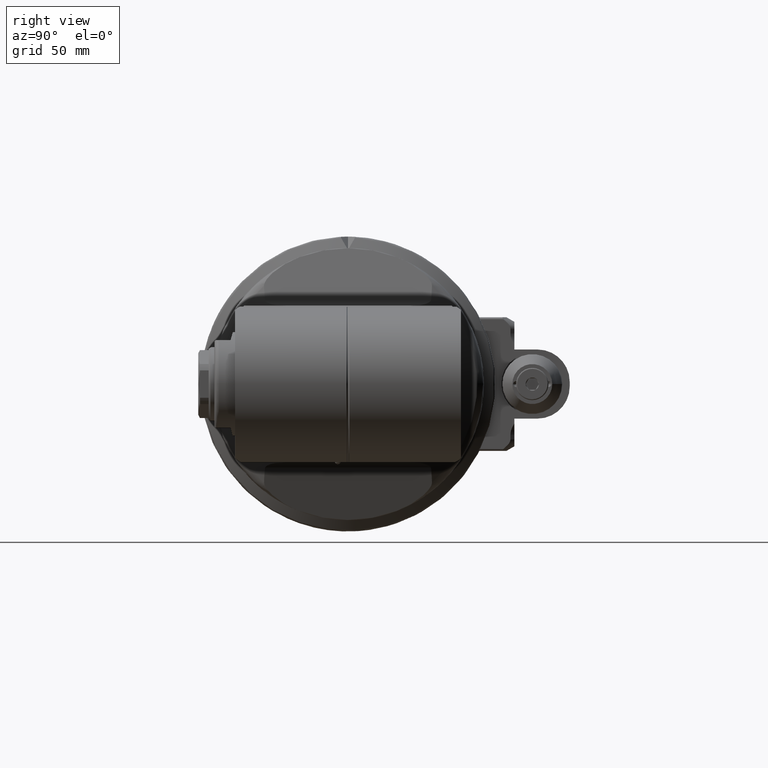
[diagram: clean part render]
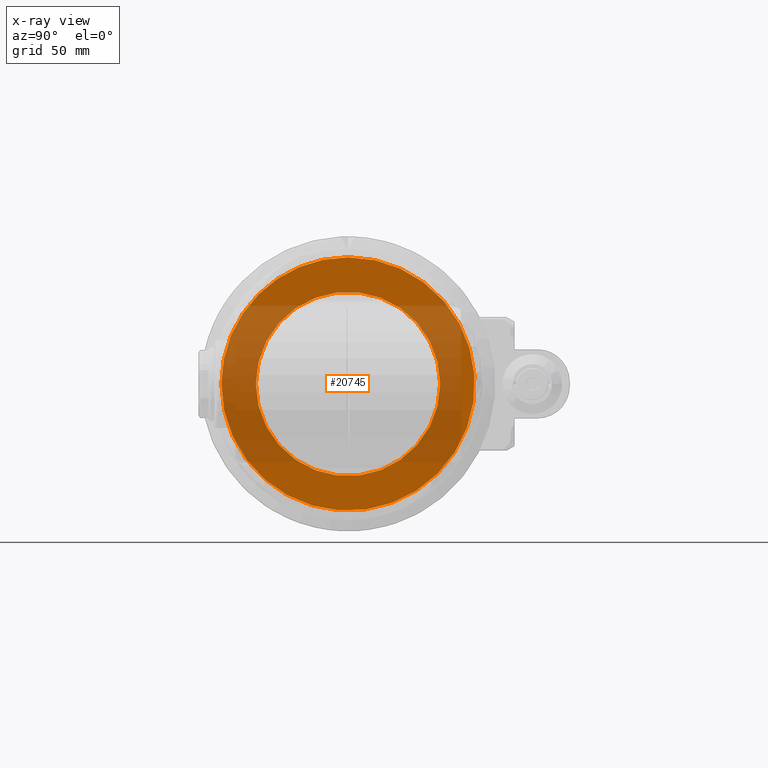
[diagram: x-ray — body ghosted, one internal face saturated and labeled with its STEP entity id]
A machine part, right view, then the same camera in x-ray: the body is ghosted and one INTERNAL B-rep face — a face not visible from any outside direction — is saturated and labeled: STEP entity #20745.
In plain terms, the highlighted planar face has unit normal (1, 0, 0).
Its self-contained STEP definition (entity closure, byte-faithful):
#196=FACE_BOUND('',#3341,.T.);
#641=CIRCLE('',#21964,55.);
#642=CIRCLE('',#21965,55.);
#661=CIRCLE('',#22000,40.);
#2441=FACE_OUTER_BOUND('',#3340,.T.);
#3340=EDGE_LOOP('',(#13547,#13548));
#3341=EDGE_LOOP('',(#13549));
#7384=VERTEX_POINT('',#32785);
#7385=VERTEX_POINT('',#32787);
#7465=VERTEX_POINT('',#33766);
#9993=EDGE_CURVE('',#7384,#7385,#641,.T.);
#9994=EDGE_CURVE('',#7385,#7384,#642,.T.);
#10089=EDGE_CURVE('',#7465,#7465,#661,.T.);
#13547=ORIENTED_EDGE('',*,*,#9994,.F.);
#13548=ORIENTED_EDGE('',*,*,#9993,.F.);
#13549=ORIENTED_EDGE('',*,*,#10089,.T.);
#20136=PLANE('',#21999);
#20745=ADVANCED_FACE('',(#2441,#196),#20136,.F.);
#21964=AXIS2_PLACEMENT_3D('',#32788,#24697,#24698);
#21965=AXIS2_PLACEMENT_3D('',#32789,#24699,#24700);
#21999=AXIS2_PLACEMENT_3D('',#33765,#24817,#24818);
#22000=AXIS2_PLACEMENT_3D('',#33767,#24819,#24820);
#24697=DIRECTION('center_axis',(1.,0.,0.));
#24698=DIRECTION('ref_axis',(0.,-6.12323399573677E-17,-1.));
#24699=DIRECTION('center_axis',(1.,0.,0.));
#24700=DIRECTION('ref_axis',(0.,-6.12323399573677E-17,-1.));
#24817=DIRECTION('center_axis',(1.,0.,0.));
#24818=DIRECTION('ref_axis',(0.,-1.,-1.22464679914735E-16));
#24819=DIRECTION('center_axis',(1.,0.,0.));
#24820=DIRECTION('ref_axis',(0.,-1.,0.));
#32785=CARTESIAN_POINT('',(178.063096769226,-3.36777869765521E-15,54.9999999999998));
#32787=CARTESIAN_POINT('',(178.063096769226,-55.,6.36568743301988E-15));
#32788=CARTESIAN_POINT('Origin',(178.063096769226,0.,-7.105427357601E-15));
#32789=CARTESIAN_POINT('Origin',(178.063096769226,0.,-7.105427357601E-15));
#33765=CARTESIAN_POINT('Origin',(178.063096769226,-60.4686031409559,-7.40526812854832E-15));
#33766=CARTESIAN_POINT('',(178.063096769226,40.,-4.89858719658941E-15));
#33767=CARTESIAN_POINT('Origin',(178.063096769226,0.,0.));